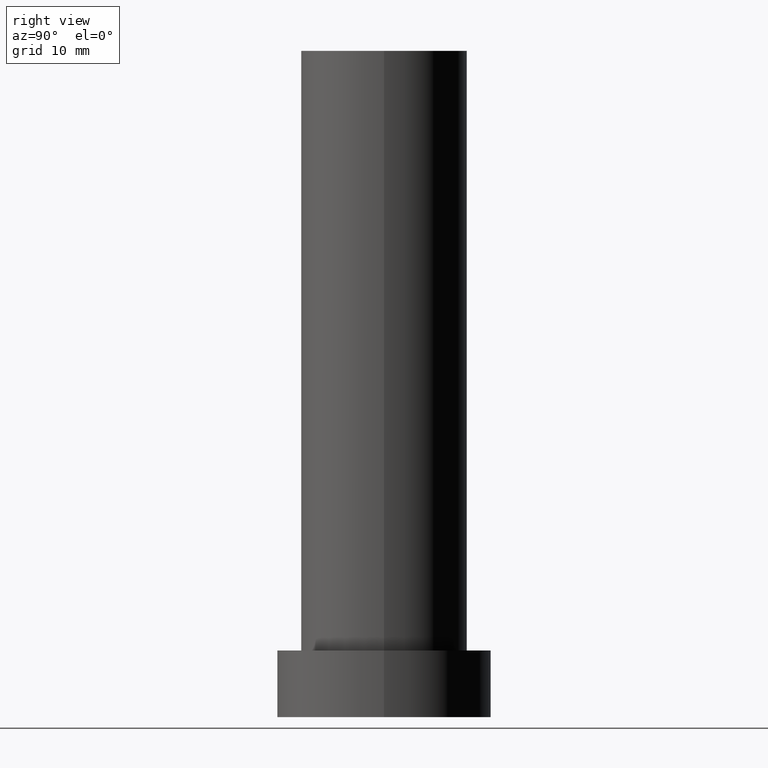
[diagram: clean part render]
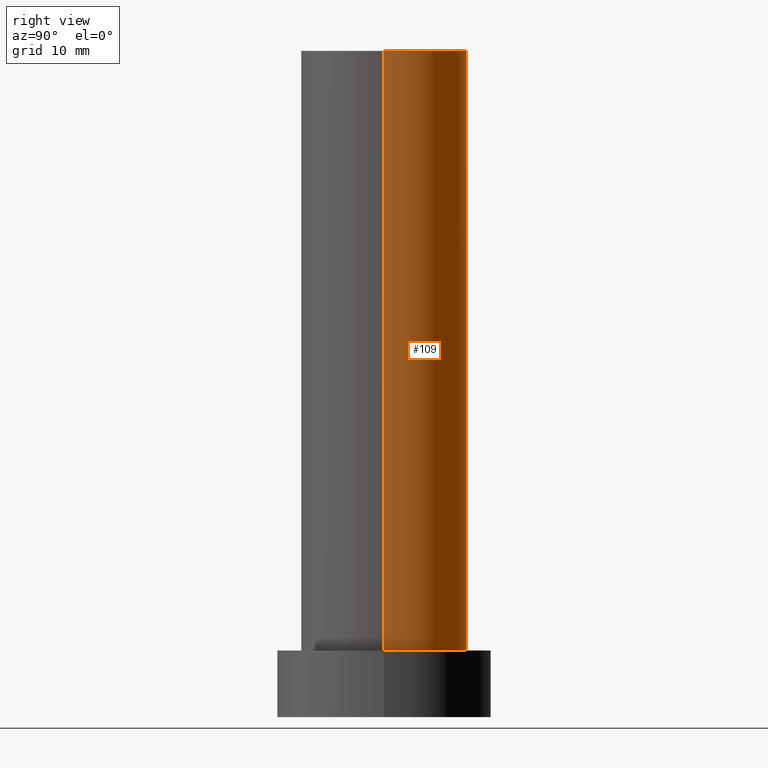
[diagram: same view with one face highlighted and labeled with its STEP entity id]
A machine part, right view. The second image highlights one B-rep face of the part: STEP entity #109.
In plain terms, the highlighted cylindrical surface (partial cylindrical patch) has radius 12.5 mm, axis along (-0, -0, -1).
Its self-contained STEP definition (entity closure, byte-faithful):
#1 = CARTESIAN_POINT ( 'NONE',  ( -12.50000000000000000, 0.000000000000000000, 99.99999999999998579 ) ) ;
#5 = VERTEX_POINT ( 'NONE', #40 ) ;
#6 = VERTEX_POINT ( 'NONE', #191 ) ;
#10 = CARTESIAN_POINT ( 'NONE',  ( 0.000000000000000000, 0.000000000000000000, 99.99999999999998579 ) ) ;
#23 = DIRECTION ( 'NONE',  ( 1.000000000000000000, 0.000000000000000000, 0.000000000000000000 ) ) ;
#25 = EDGE_CURVE ( 'NONE', #5, #83, #175, .T. ) ;
#26 = VERTEX_POINT ( 'NONE', #1 ) ;
#32 = CARTESIAN_POINT ( 'NONE',  ( 0.000000000000000000, 0.000000000000000000, 10.00000000000000000 ) ) ;
#35 = CIRCLE ( 'NONE', #226, 12.50000000000000000 ) ;
#40 = CARTESIAN_POINT ( 'NONE',  ( 12.50000000000000000, 1.530808498934191127E-15, 99.99999999999998579 ) ) ;
#44 = CARTESIAN_POINT ( 'NONE',  ( 12.50000000000000000, 1.530808498934191127E-15, 10.00000000000000000 ) ) ;
#48 = ORIENTED_EDGE ( 'NONE', *, *, #90, .F. ) ;
#51 = DIRECTION ( 'NONE',  ( 0.000000000000000000, 0.000000000000000000, 1.000000000000000000 ) ) ;
#54 = AXIS2_PLACEMENT_3D ( 'NONE', #171, #68, #107 ) ;
#61 = AXIS2_PLACEMENT_3D ( 'NONE', #10, #88, #228 ) ;
#68 = DIRECTION ( 'NONE',  ( 0.000000000000000000, 0.000000000000000000, 1.000000000000000000 ) ) ;
#72 = DIRECTION ( 'NONE',  ( -0.000000000000000000, -0.000000000000000000, -1.000000000000000000 ) ) ;
#83 = VERTEX_POINT ( 'NONE', #44 ) ;
#87 = FACE_OUTER_BOUND ( 'NONE', #244, .T. ) ;
#88 = DIRECTION ( 'NONE',  ( -0.000000000000000000, -0.000000000000000000, -1.000000000000000000 ) ) ;
#90 = EDGE_CURVE ( 'NONE', #26, #6, #178, .T. ) ;
#103 = ORIENTED_EDGE ( 'NONE', *, *, #25, .T. ) ;
#107 = DIRECTION ( 'NONE',  ( 1.000000000000000000, 0.000000000000000000, 0.000000000000000000 ) ) ;
#109 = ADVANCED_FACE ( 'NONE', ( #87 ), #152, .T. ) ;
#110 = DIRECTION ( 'NONE',  ( -0.000000000000000000, -0.000000000000000000, -1.000000000000000000 ) ) ;
#111 = VECTOR ( 'NONE', #110, 1000.000000000000000 ) ;
#112 = ORIENTED_EDGE ( 'NONE', *, *, #201, .T. ) ;
#152 = CYLINDRICAL_SURFACE ( 'NONE', #61, 12.50000000000000000 ) ;
#166 = ORIENTED_EDGE ( 'NONE', *, *, #221, .F. ) ;
#171 = CARTESIAN_POINT ( 'NONE',  ( 0.000000000000000000, 0.000000000000000000, 99.99999999999998579 ) ) ;
#172 = CIRCLE ( 'NONE', #54, 12.50000000000000000 ) ;
#173 = CARTESIAN_POINT ( 'NONE',  ( 12.50000000000000000, 1.530808498934191127E-15, 99.99999999999998579 ) ) ;
#175 = LINE ( 'NONE', #173, #184 ) ;
#178 = LINE ( 'NONE', #233, #111 ) ;
#184 = VECTOR ( 'NONE', #72, 1000.000000000000000 ) ;
#191 = CARTESIAN_POINT ( 'NONE',  ( -12.50000000000000000, 0.000000000000000000, 10.00000000000000000 ) ) ;
#201 = EDGE_CURVE ( 'NONE', #83, #6, #35, .T. ) ;
#221 = EDGE_CURVE ( 'NONE', #5, #26, #172, .T. ) ;
#226 = AXIS2_PLACEMENT_3D ( 'NONE', #32, #51, #23 ) ;
#228 = DIRECTION ( 'NONE',  ( -1.000000000000000000, 0.000000000000000000, 0.000000000000000000 ) ) ;
#233 = CARTESIAN_POINT ( 'NONE',  ( -12.50000000000000000, 0.000000000000000000, 99.99999999999998579 ) ) ;
#244 = EDGE_LOOP ( 'NONE', ( #166, #103, #112, #48 ) ) ;